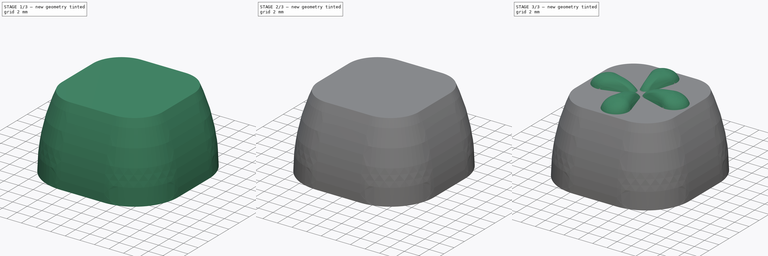
[diagram: build sequence overview — one tinted view per stage of 3, left to right]
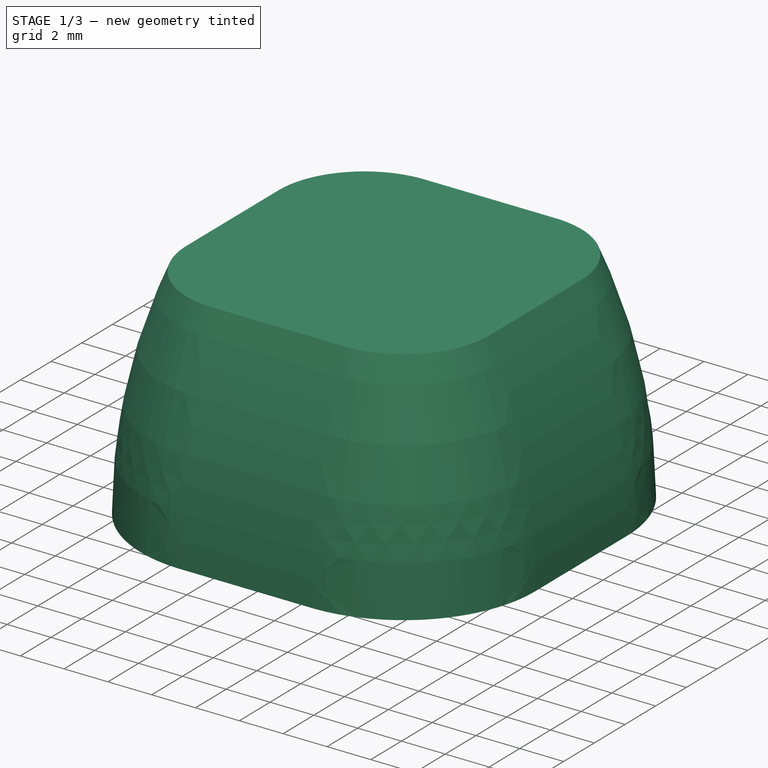
[diagram: stage 1 of 3 — iso view after this stage's code; geometry added in this stage tinted green]
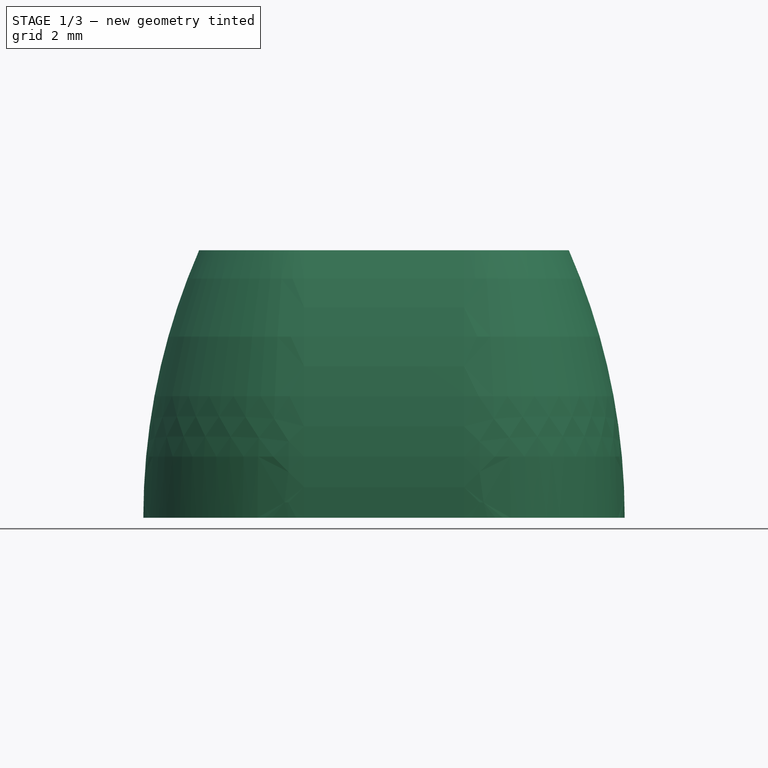
[diagram: stage 1 of 3 — front view after this stage's code; geometry added in this stage tinted green]
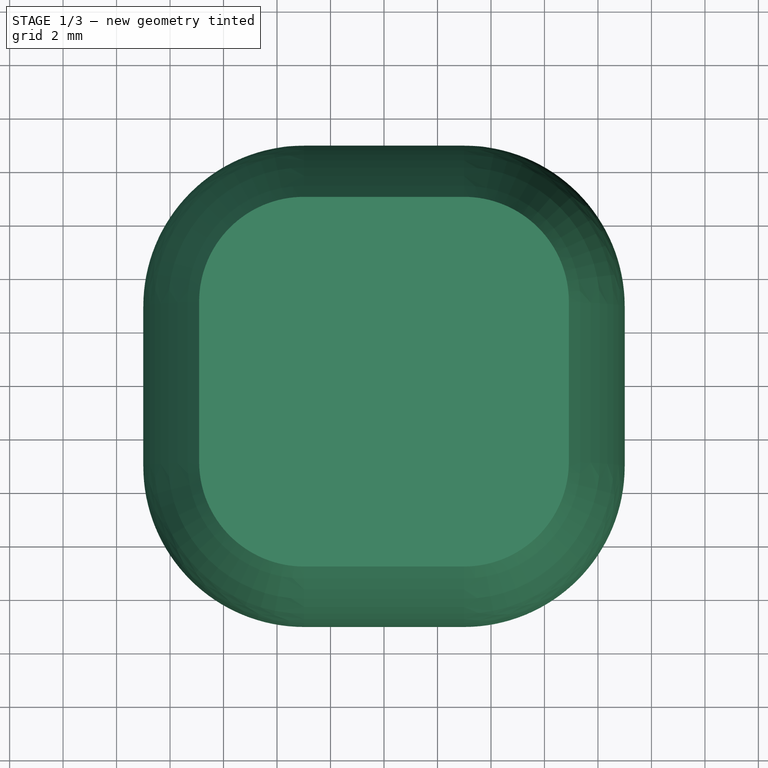
[diagram: stage 1 of 3 — top view after this stage's code; geometry added in this stage tinted green]
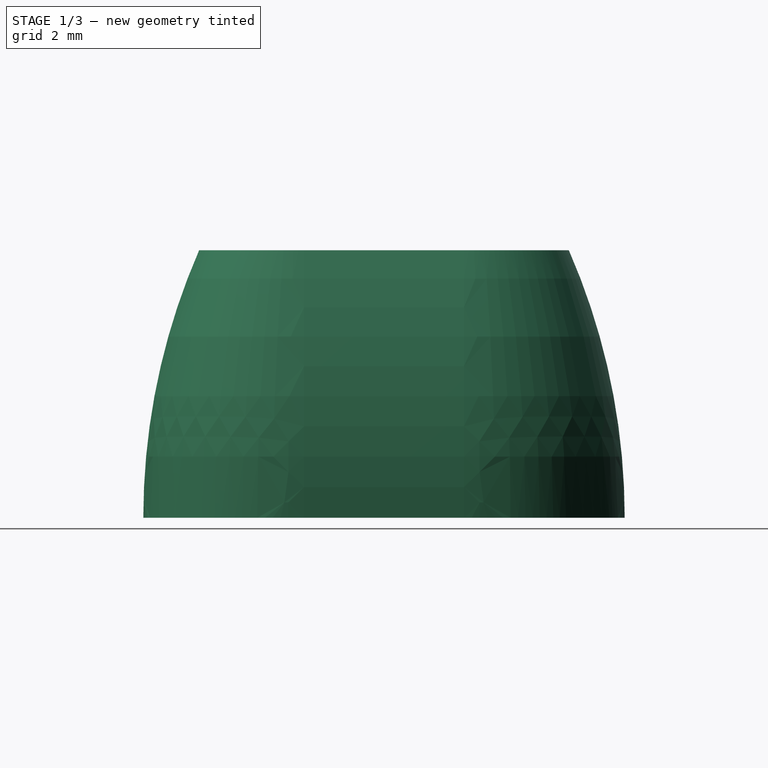
[diagram: stage 1 of 3 — right view after this stage's code; geometry added in this stage tinted green]
FCSTD DOCUMENT  (FreeCAD 1.0R38643 (Git))
Label: custom_keycap
License: All rights reserved
LicenseURL: http://en.wikipedia.org/wiki/All_rights_reserved
objects: Sketcher::SketchObject×8, PartDesign::Pad×3, PartDesign::PolarPattern×2, PartDesign::AdditivePipe×1, PartDesign::AdditiveLoft×1, PartDesign::Body×1
note: 36 computed .brp shape members not serialized (recipe doc carries the construction recipe); baked Part::Feature solids carry a one-line shape summary decoded from their .brp

FEATURE [Sketcher::SketchObject] Sketch
  ArcFitTolerance = 1e-06
  AttachmentSupport = -> [XZ_Plane]
  FullyConstrained = true
  MakeInternals = false
  MapMode = 5
  Placement = pos=(0,0,0) rot=(1,0,0;1.5708rad)
  sketch-geometry (6):
    g0: LineSegment StartX=-7.4 StartY=2.9e-15 StartZ=0 EndX=-9 EndY=3.1e-15 EndZ=0
    g1: ArcOfCircle CenterX=16 CenterY=0 CenterZ=0 NormalX=0 NormalY=0 NormalZ=1 AngleXU=0 Radius=25 StartAngle=2.73008 EndAngle=3.14159
    g2: LineSegment StartX=-6.91288 StartY=10 StartZ=0 EndX=-3.99 EndY=10 EndZ=0
    g3: LineSegment StartX=-3.99 StartY=10 StartZ=0 EndX=-3.99 EndY=8 EndZ=0
    g4: LineSegment StartX=-3.99 StartY=8 StartZ=0 EndX=-5.99 EndY=8 EndZ=0
    g5: ArcOfCircle CenterX=16 CenterY=0 CenterZ=0 NormalX=0 NormalY=0 NormalZ=1 AngleXU=0 Radius=23.4 StartAngle=2.79268 EndAngle=3.14159
  constraints (19):
    c: PointOnObject(g0,g-1)
    c: PointOnObject(g0,g-1)
    c: Coincident(g1,g2)
    c: Horizontal(g2)
    c: Coincident(g2,g3)
    c: Coincident(g3,g4)
    c: Coincident(g5,g0)
    c: Horizontal(g4)
    c: Vertical(g3)
    c: Coincident(g1,g0)
    c: Coincident(g1,g5)
    c: Coincident(g4,g5)
    c: PointOnObject(g1,g-1)
    c: DistanceY(g3,g3) = 2  'top_thickness'
    c: Distance(g0,g0) = 1.6
    c: DistanceX(g4,g4) = 2
    c: DistanceY(g-1,g2) = 10  'height'
    c: DistanceX(g0,g1) = 25
    c: DistanceX(g0,g-1) = 9
FEATURE [Sketcher::SketchObject] Sketch001
  ArcFitTolerance = 1e-06
  AttachmentOffset = pos=(0,0,10) rot=(0,0,1;0rad)
  AttachmentSupport = -> [XY_Plane]
  ExternalGeometry = -> [Sketch]
  FullyConstrained = true
  MakeInternals = false
  MapMode = 5
  Placement = pos=(0,0,10) rot=(0,0,1;0rad)
  expr: .AttachmentOffset.Base.z = Sketch.Constraints.height
  sketch-geometry (10):
    g0: LineSegment StartX=-3.99 StartY=2.99 StartZ=0 EndX=-3.99 EndY=-2.99 EndZ=0
    g1: LineSegment StartX=-2.99 StartY=-3.99 StartZ=0 EndX=2.99 EndY=-3.99 EndZ=0
    g2: LineSegment StartX=3.99 StartY=-2.99 StartZ=0 EndX=3.99 EndY=2.99 EndZ=0
    g3: LineSegment StartX=2.99 StartY=3.99 StartZ=0 EndX=-2.99 EndY=3.99 EndZ=0
    g4: ArcOfCircle CenterX=-2.99 CenterY=2.99 CenterZ=0 NormalX=0 NormalY=0 NormalZ=1 AngleXU=0 Radius=1 StartAngle=1.5708 EndAngle=3.14159
    g5: ArcOfCircle CenterX=-2.99 CenterY=-2.99 CenterZ=0 NormalX=0 NormalY=0 NormalZ=1 AngleXU=0 Radius=1 StartAngle=3.14159 EndAngle=4.71239
    g6: ArcOfCircle CenterX=2.99 CenterY=-2.99 CenterZ=0 NormalX=0 NormalY=0 NormalZ=1 AngleXU=0 Radius=1 StartAngle=4.71239 EndAngle=6.28319
    g7: ArcOfCircle CenterX=2.99 CenterY=2.99 CenterZ=0 NormalX=0 NormalY=0 NormalZ=1 AngleXU=0 Radius=1 StartAngle=0 EndAngle=1.5708
    g8: GeomPoint [constr] X=-3.99 Y=3.99 Z=0
    g9: GeomPoint [constr] X=3.99 Y=-3.99 Z=0
  constraints (23):
    c: Tangent(g0,g4) = -1.5708
    c: Tangent(g0,g5) = -1.5708
    c: Tangent(g1,g5) = -1.5708
    c: Tangent(g1,g6) = -1.5708
    c: Tangent(g2,g6) = -1.5708
    c: Tangent(g2,g7) = -1.5708
    c: Tangent(g3,g7) = -1.5708
    c: Tangent(g3,g4) = -1.5708
    c: Vertical(g0)
    c: Vertical(g2)
    c: Horizontal(g1)
    c: Horizontal(g3)
    c: Equal(g4,g5)
    c: Equal(g5,g6)
    c: Equal(g6,g7)
    c: PointOnObject(g8,g0)
    c: PointOnObject(g8,g3)
    c: PointOnObject(g9,g1)
    c: PointOnObject(g9,g2)
    c: PointOnObject(g-3,g0)
    c: Symmetric(g4,g6,g-1)
    c: Equal(g3,g0)
    c: Radius(g7) = 1
FEATURE [PartDesign::AdditivePipe] AdditivePipe
  AuxilleryCurvelinear = true
  AuxillerySpineTangent = false
  Binormal = (0,0,0)
  Mode = 0
  Placement = pos=(0,0,0) rot=(1,0,0;1.5708rad)
  Profile = -> Sketch
  Spine = -> Sketch001
  SpineTangent = false
  Suppressed = false
  Transformation = 0
  Transition = 0
FEATURE [PartDesign::Pad] Pad
  BaseFeature = -> AdditivePipe
  Direction = (0,0,1)
  Length = 2
  Length2 = 10
  Placement = pos=(0,0,0) rot=(1,0,0;1.5708rad)
  Profile = -> Sketch001
  ReferenceAxis = -> Sketch001 [N_Axis]
  Reversed = true
  Suppressed = false
  Type = 0
  expr: Length = Sketch.Constraints.top_thickness
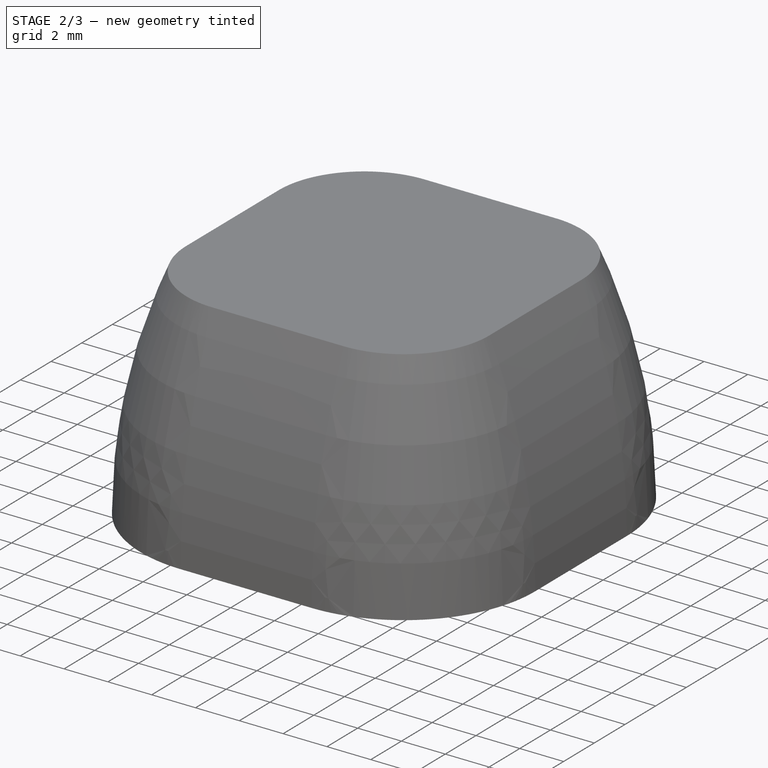
[diagram: stage 2 of 3 — iso view after this stage's code; geometry added in this stage tinted green]
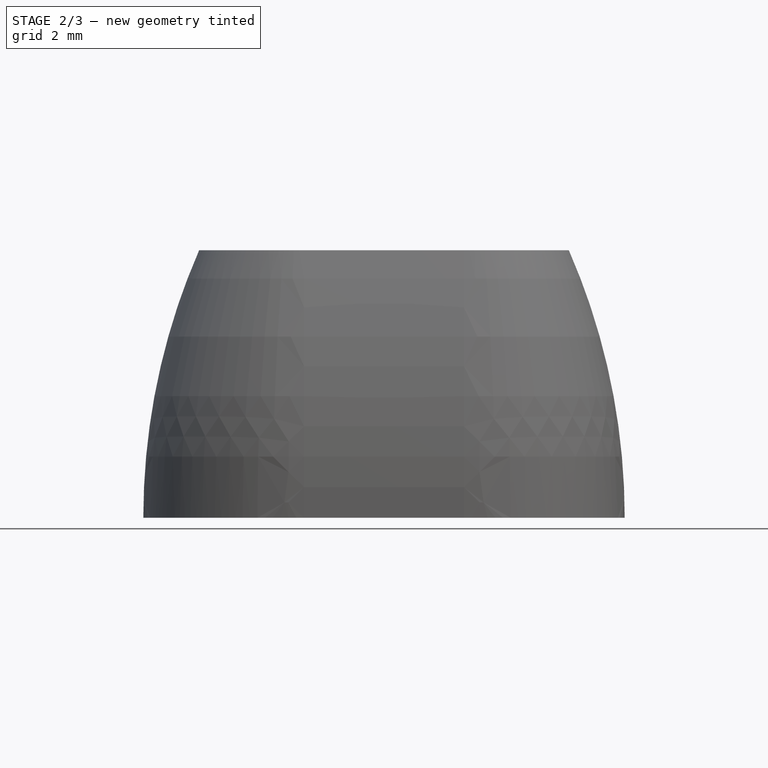
[diagram: stage 2 of 3 — front view after this stage's code; geometry added in this stage tinted green]
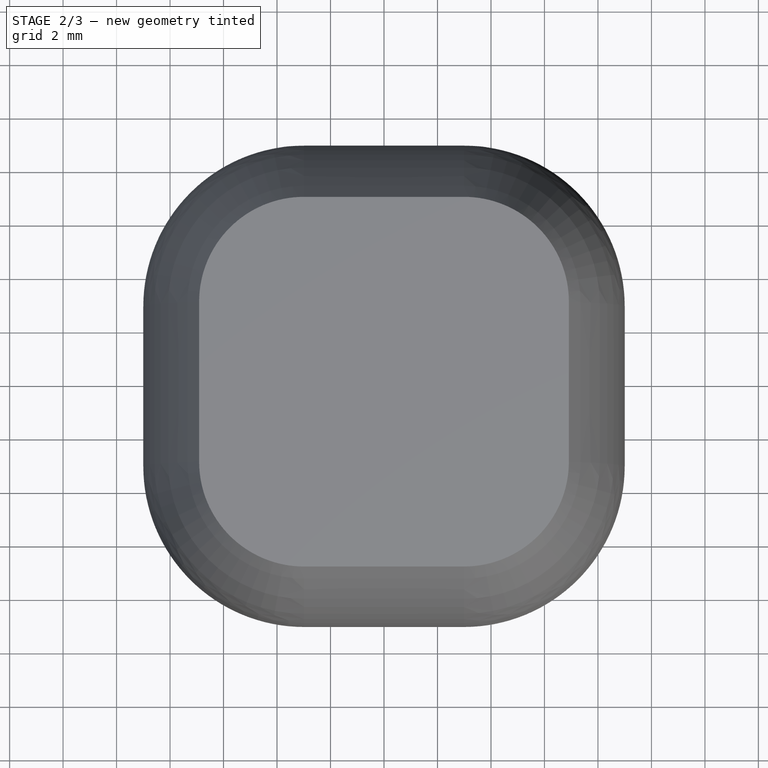
[diagram: stage 2 of 3 — top view after this stage's code; geometry added in this stage tinted green]
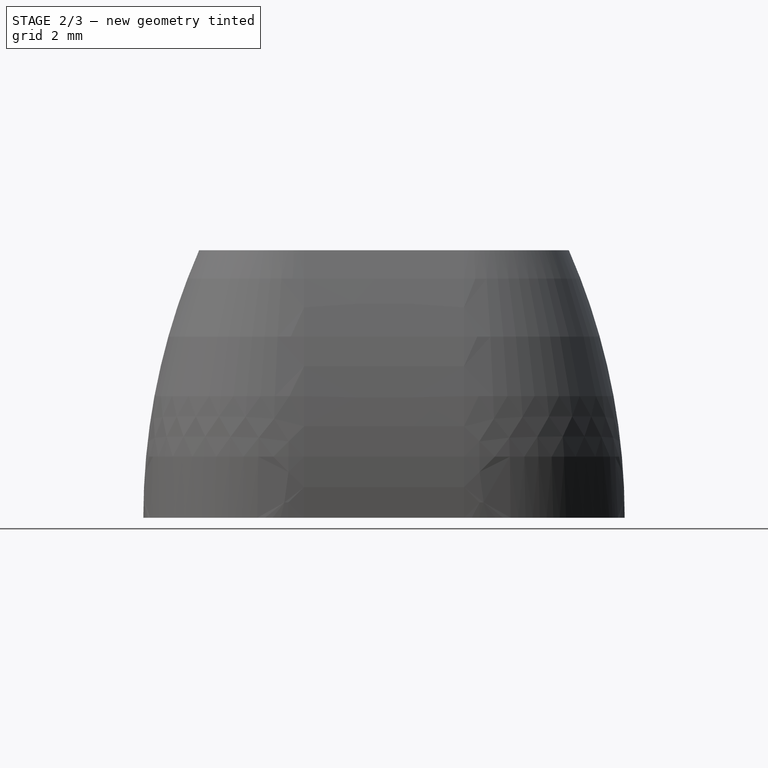
[diagram: stage 2 of 3 — right view after this stage's code; geometry added in this stage tinted green]
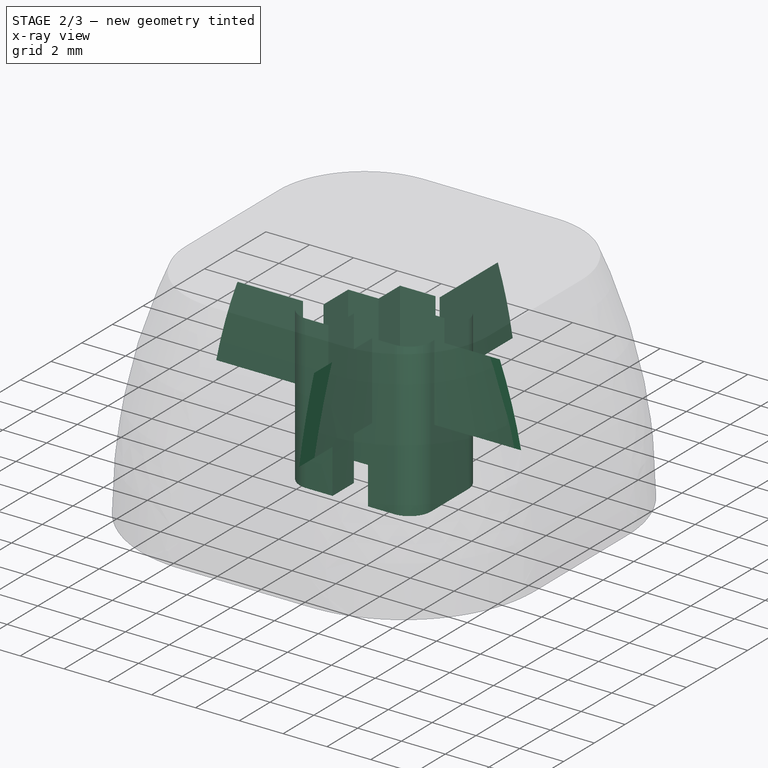
[diagram: stage 2 of 3 — x-ray composite at the iso view; earlier geometry ghosted, this stage's added geometry solid]
FEATURE [Sketcher::SketchObject] Sketch002
  ArcFitTolerance = 1e-06
  AttachmentSupport = -> [Pad]
  FullyConstrained = true
  MakeInternals = false
  MapMode = 5
  Placement = pos=(0,0,8) rot=(1,0,0;3.14159rad)
  expr: Constraints[51] = .Constraints.half_width
  expr: Constraints[53] = .Constraints.half_gap
  sketch-geometry (20):
    g0: LineSegment StartX=-0.81 StartY=2.2 StartZ=0 EndX=-0.81 EndY=0.805 EndZ=0
    g1: LineSegment StartX=-0.81 StartY=0.805 StartZ=0 EndX=-2.2 EndY=0.805 EndZ=0
    g2: LineSegment StartX=-2.2 StartY=0.805 StartZ=0 EndX=-2.2 EndY=-0.805 EndZ=0
    g3: LineSegment StartX=-2.2 StartY=-0.805 StartZ=0 EndX=-0.81 EndY=-0.805 EndZ=0
    g4: LineSegment StartX=-0.81 StartY=-0.805 StartZ=0 EndX=-0.81 EndY=-2.2 EndZ=0
    g5: LineSegment StartX=-0.81 StartY=-2.2 StartZ=0 EndX=-2 EndY=-2.2 EndZ=0
    g6: ArcOfCircle CenterX=-2 CenterY=-1.2 CenterZ=0 NormalX=0 NormalY=0 NormalZ=1 AngleXU=0 Radius=1 StartAngle=3.14159 EndAngle=4.71239
    g7: LineSegment StartX=-3 StartY=-1.2 StartZ=0 EndX=-3 EndY=1.2 EndZ=0
    g8: ArcOfCircle CenterX=-2 CenterY=1.2 CenterZ=0 NormalX=0 NormalY=0 NormalZ=1 AngleXU=0 Radius=1 StartAngle=1.5708 EndAngle=3.14159
    g9: LineSegment StartX=-2 StartY=2.2 StartZ=0 EndX=-0.81 EndY=2.2 EndZ=0
    g10: LineSegment StartX=0.81 StartY=2.2 StartZ=0 EndX=0.81 EndY=0.805 EndZ=0
    g11: LineSegment StartX=0.81 StartY=0.805 StartZ=0 EndX=2.2 EndY=0.805 EndZ=0
    g12: LineSegment StartX=2.2 StartY=0.805 StartZ=0 EndX=2.2 EndY=-0.805 EndZ=0
    g13: LineSegment StartX=2.2 StartY=-0.805 StartZ=0 EndX=0.81 EndY=-0.805 EndZ=0
    g14: LineSegment StartX=0.81 StartY=-0.805 StartZ=0 EndX=0.81 EndY=-2.2 EndZ=0
    g15: LineSegment StartX=0.81 StartY=-2.2 StartZ=0 EndX=2 EndY=-2.2 EndZ=0
    g16: ArcOfCircle CenterX=2 CenterY=-1.2 CenterZ=0 NormalX=0 NormalY=0 NormalZ=1 AngleXU=0 Radius=1 StartAngle=4.71239 EndAngle=6.28319
    g17: LineSegment StartX=3 StartY=-1.2 StartZ=0 EndX=3 EndY=1.2 EndZ=0
    g18: ArcOfCircle CenterX=2 CenterY=1.2 CenterZ=0 NormalX=0 NormalY=0 NormalZ=1 AngleXU=0 Radius=1 StartAngle=0 EndAngle=1.5708
    g19: LineSegment StartX=2 StartY=2.2 StartZ=0 EndX=0.81 EndY=2.2 EndZ=0
  constraints (54):
    c: Vertical(g0)
    c: Coincident(g0,g1)
    c: Coincident(g1,g2)
    c: Coincident(g2,g3)
    c: Horizontal(g3)
    c: Coincident(g3,g4)
    c: Coincident(g4,g5)
    c: Horizontal(g5)
    c: Tangent(g5,g6) = 1.5708
    c: Tangent(g6,g7) = 1.5708
    c: Tangent(g7,g8) = 1.5708
    c: Tangent(g8,g9) = 1.5708
    c: Coincident(g9,g0)
    c: Horizontal(g9)
    c: Horizontal(g1)
    c: Vertical(g2)
    c: Vertical(g4)
    c: Equal(g8,g6)
    c: Vertical(g7)
    c: Distance(g7,g-2) = 3  'half_width'
    c: DistanceY(g2,g2) = 1.61
    c: Symmetric(g0,g3,g-1)
    c: DistanceY(g4,g0) = 4.4
    c: Radius(g8) = 1
    c: Distance(g0,g-2) = 0.81  'half_gap'
    c: Distance(g-2,g2) = 2.2
    c: Equal(g0,g4)
    c: Vertical(g10)
    c: Coincident(g10,g11)
    c: Coincident(g11,g12)
    c: Coincident(g12,g13)
    c: Horizontal(g13)
    c: Coincident(g13,g14)
    c: Coincident(g14,g15)
    c: Horizontal(g15)
    c: Tangent(g15,g16) = -1.5708
    c: Tangent(g16,g17) = -1.5708
    c: Tangent(g17,g18) = -1.5708
    c: Tangent(g18,g19) = -1.5708
    c: Coincident(g19,g10)
    c: Horizontal(g19)
    c: Horizontal(g11)
    c: Vertical(g12)
    c: Vertical(g14)
    c: Equal(g18,g16)
    c: Vertical(g17)
    c: Radius(g18) = 1
    c: Equal(g10,g14)
    c: Symmetric(g10,g13,g-1)
    c: Equal(g2,g12)
    c: Equal(g1,g11)
    c: DistanceX(g-1,g17) = 3
    c: Equal(g0,g10)
    c: Distance(g-1,g10) = 0.81
FEATURE [PartDesign::Pad] Pad001
  BaseFeature = -> Pad
  Direction = (0,0,-1)
  Length = 7
  Length2 = 10
  Placement = pos=(0,0,0) rot=(1,0,0;1.5708rad)
  Profile = -> Sketch002
  ReferenceAxis = -> Sketch002 [N_Axis]
  Suppressed = false
  Type = 0
  expr: Length = Sketch.Constraints.height - Sketch.Constraints.top_thickness - 1 mm
FEATURE [Sketcher::SketchObject] Sketch003
  ArcFitTolerance = 1e-06
  AttachmentSupport = -> [XZ_Plane]
  ExternalGeometry = -> [Pad001]
  FullyConstrained = true
  MakeInternals = false
  MapMode = 5
  Placement = pos=(0,0,0) rot=(1,0,0;1.5708rad)
  sketch-geometry (4):
    g0: LineSegment StartX=-7.68544 StartY=8 StartZ=0 EndX=-8.59167 EndY=4.5 EndZ=0
    g1: LineSegment StartX=-8.59167 StartY=4.5 StartZ=0 EndX=-2.2 EndY=4.5 EndZ=0
    g2: LineSegment StartX=-2.2 StartY=4.5 StartZ=0 EndX=-2.2 EndY=8 EndZ=0
    g3: LineSegment StartX=-2.2 StartY=8 StartZ=0 EndX=-7.68544 EndY=8 EndZ=0
  constraints (11):
    c: Coincident(g0,g1)
    c: Coincident(g1,g2)
    c: Coincident(g2,g3)
    c: Coincident(g3,g0)
    c: Vertical(g2)
    c: Horizontal(g1)
    c: Horizontal(g3)
    c: PointOnObject(g0,g-4)
    c: PointOnObject(g0,g-4)
    c: DistanceY(g2,g2) = 3.5
    c: Coincident(g2,g-7)
FEATURE [PartDesign::Pad] Pad002
  BaseFeature = -> Pad001
  Direction = (0,-1,2e-16)
  Length = 2
  Length2 = 10
  Midplane = true
  Placement = pos=(0,0,0) rot=(1,0,0;1.5708rad)
  Profile = -> Sketch003
  ReferenceAxis = -> Sketch003 [N_Axis]
  Suppressed = false
  Type = 0
FEATURE [PartDesign::PolarPattern] PolarPattern
  Angle = 360
  Axis = -> Z_Axis
  BaseFeature = -> Pad002
  Mode = 0
  Occurrences = 4
  Offset = 120
  Originals = -> [Pad002]
  Placement = pos=(0,0,0) rot=(1,0,0;1.5708rad)
  Suppressed = false
  TransformMode = 0
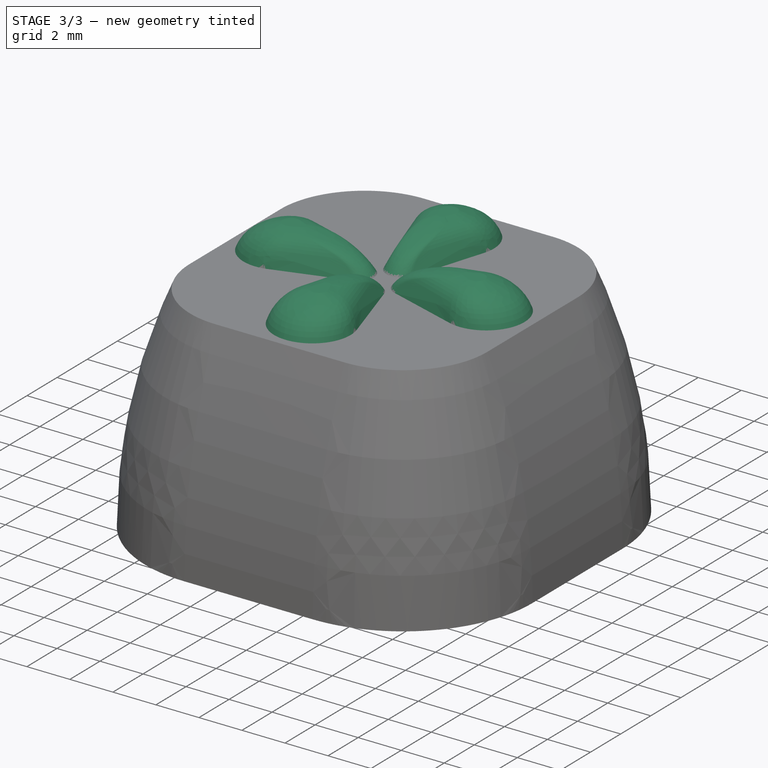
[diagram: stage 3 of 3 — iso view after this stage's code; geometry added in this stage tinted green]
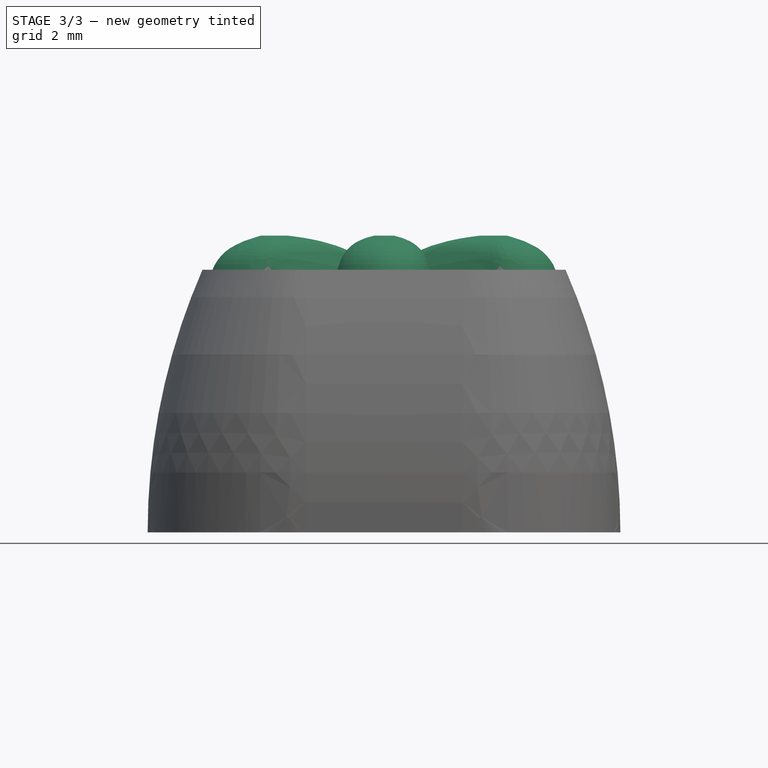
[diagram: stage 3 of 3 — front view after this stage's code; geometry added in this stage tinted green]
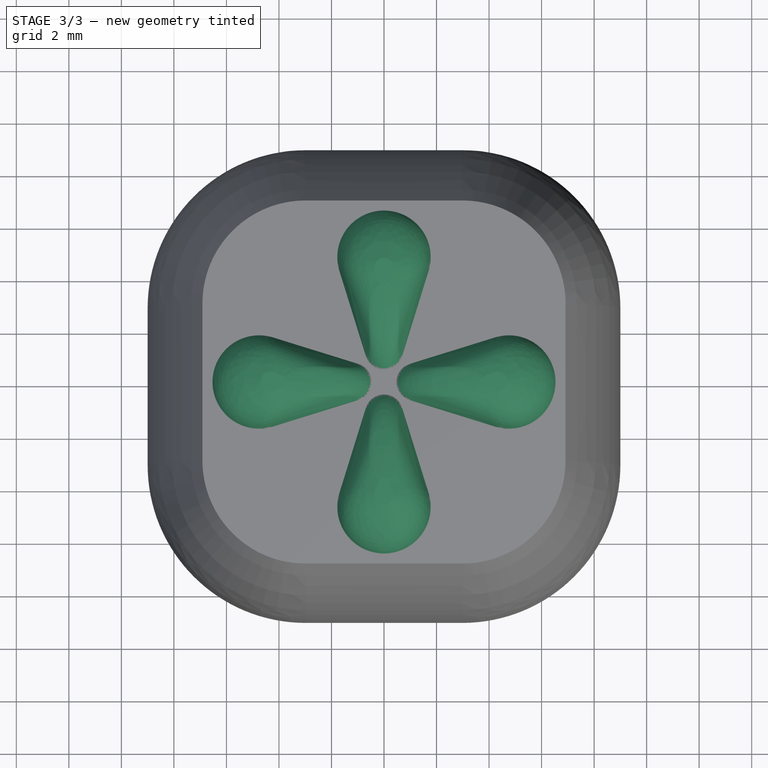
[diagram: stage 3 of 3 — top view after this stage's code; geometry added in this stage tinted green]
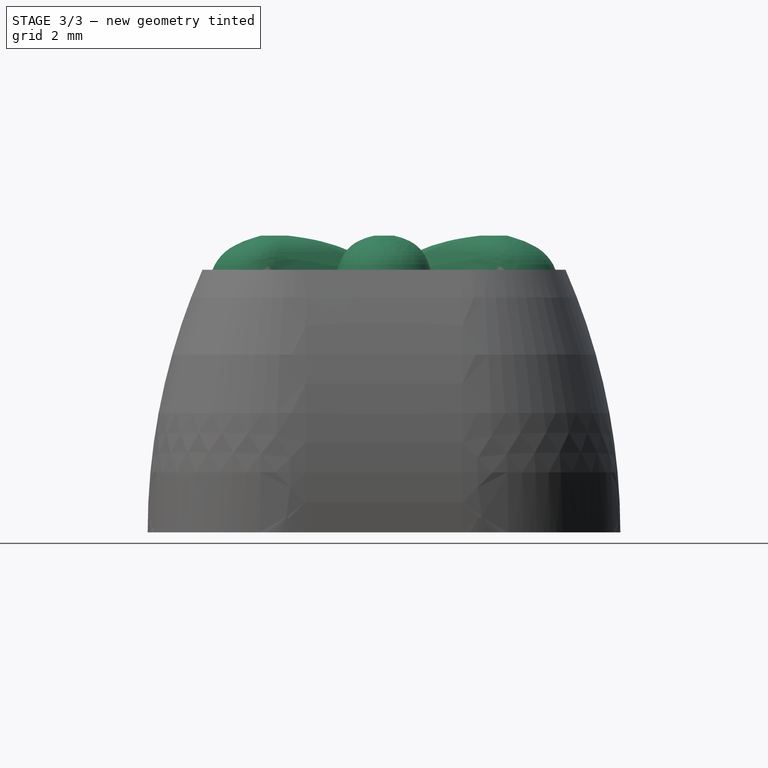
[diagram: stage 3 of 3 — right view after this stage's code; geometry added in this stage tinted green]
FEATURE [Sketcher::SketchObject] Sketch004
  ArcFitTolerance = 1e-06
  AttachmentSupport = -> [PolarPattern]
  FullyConstrained = false
  MakeInternals = false
  MapMode = 5
  Placement = pos=(0,0,10) rot=(0,0,1;3.14159rad)
  sketch-geometry (4):
    g0: ArcOfCircle CenterX=-4.75292 CenterY=0 CenterZ=0 NormalX=0 NormalY=0 NormalZ=1 AngleXU=0 Radius=1.77776 StartAngle=1.2693 EndAngle=5.01389
    g1: ArcOfCircle CenterX=-1.19797 CenterY=0 CenterZ=0 NormalX=0 NormalY=0 NormalZ=1 AngleXU=0 Radius=0.722106 StartAngle=5.01389 EndAngle=7.55248
    g2: LineSegment StartX=-4.22501 StartY=1.69757 StartZ=0 EndX=-0.983538 EndY=0.689533 EndZ=0
    g3: LineSegment StartX=-4.225 StartY=-1.69757 StartZ=0 EndX=-0.983538 EndY=-0.689533 EndZ=0
  constraints (6):
    c: PointOnObject(g0,g-1)
    c: PointOnObject(g1,g-1)
    c: Tangent(g0,g3) = -1.5708
    c: Tangent(g0,g2) = 1.5708
    c: Tangent(g1,g2) = 1.5708
    c: Tangent(g1,g3) = -1.5708
FEATURE [Sketcher::SketchObject] Sketch005
  ArcFitTolerance = 1e-06
  AttachmentOffset = pos=(0,0,0.5) rot=(0,0,1;0rad)
  AttachmentSupport = -> [PolarPattern]
  FullyConstrained = false
  MakeInternals = false
  MapMode = 5
  Placement = pos=(0,0,10.5) rot=(0,0,1;3.14159rad)
  sketch-geometry (4):
    g0: ArcOfCircle CenterX=-4.64864 CenterY=0 CenterZ=0 NormalX=0 NormalY=0 NormalZ=1 AngleXU=0 Radius=1.58233 StartAngle=1.2445 EndAngle=5.03868
    g1: ArcOfCircle CenterX=-1.57094 CenterY=0 CenterZ=0 NormalX=0 NormalY=0 NormalZ=1 AngleXU=0 Radius=0.595823 StartAngle=5.03868 EndAngle=7.52769
    g2: LineSegment StartX=-4.14145 StartY=1.49884 StartZ=0 EndX=-1.37996 EndY=0.564386 EndZ=0
    g3: LineSegment StartX=-4.14145 StartY=-1.49884 StartZ=0 EndX=-1.37996 EndY=-0.564386 EndZ=0
  constraints (6):
    c: PointOnObject(g0,g-1)
    c: PointOnObject(g1,g-1)
    c: Tangent(g0,g3) = -1.5708
    c: Tangent(g0,g2) = 1.5708
    c: Tangent(g1,g2) = 1.5708
    c: Tangent(g1,g3) = -1.5708
FEATURE [Sketcher::SketchObject] Sketch006
  ArcFitTolerance = 1e-06
  AttachmentOffset = pos=(0,0,1) rot=(0,0,1;0rad)
  AttachmentSupport = -> [PolarPattern]
  FullyConstrained = false
  MakeInternals = false
  MapMode = 5
  Placement = pos=(0,0,11) rot=(0,0,1;3.14159rad)
  sketch-geometry (4):
    g0: ArcOfCircle CenterX=-4.42146 CenterY=0 CenterZ=0 NormalX=0 NormalY=0 NormalZ=1 AngleXU=0 Radius=1.13256 StartAngle=1.26925 EndAngle=5.01394
    g1: ArcOfCircle CenterX=-2.69368 CenterY=0 CenterZ=0 NormalX=0 NormalY=0 NormalZ=1 AngleXU=0 Radius=0.619414 StartAngle=5.01394 EndAngle=7.55243
    g2: LineSegment StartX=-4.08509 StartY=1.08146 StartZ=0 EndX=-2.50972 EndY=0.591465 EndZ=0
    g3: LineSegment StartX=-4.08509 StartY=-1.08146 StartZ=0 EndX=-2.50972 EndY=-0.591465 EndZ=0
  constraints (6):
    c: PointOnObject(g0,g-1)
    c: PointOnObject(g1,g-1)
    c: Tangent(g0,g3) = -1.5708
    c: Tangent(g0,g2) = 1.5708
    c: Tangent(g1,g2) = 1.5708
    c: Tangent(g1,g3) = -1.5708
FEATURE [Sketcher::SketchObject] Sketch007
  ArcFitTolerance = 1e-06
  AttachmentOffset = pos=(0,0,1.3) rot=(0,0,1;0rad)
  AttachmentSupport = -> [PolarPattern]
  FullyConstrained = false
  MakeInternals = false
  MapMode = 5
  Placement = pos=(0,0,11.3) rot=(0,0,1;3.14159rad)
  sketch-geometry (4):
    g0: ArcOfCircle CenterX=-4.32082 CenterY=0 CenterZ=0 NormalX=0 NormalY=0 NormalZ=1 AngleXU=0 Radius=0.374064 StartAngle=1.16648 EndAngle=5.1167
    g1: ArcOfCircle CenterX=-3.84746 CenterY=0 CenterZ=0 NormalX=0 NormalY=0 NormalZ=1 AngleXU=0 Radius=0.187847 StartAngle=5.1167 EndAngle=7.44967
    g2: LineSegment StartX=-4.17367 StartY=0.343905 StartZ=0 EndX=-3.77356 EndY=0.172702 EndZ=0
    g3: LineSegment StartX=-4.17367 StartY=-0.343905 StartZ=0 EndX=-3.77356 EndY=-0.172702 EndZ=0
  constraints (6):
    c: PointOnObject(g0,g-1)
    c: PointOnObject(g1,g-1)
    c: Tangent(g0,g3) = -1.5708
    c: Tangent(g0,g2) = 1.5708
    c: Tangent(g1,g2) = 1.5708
    c: Tangent(g1,g3) = -1.5708
FEATURE [PartDesign::AdditiveLoft] AdditiveLoft
  BaseFeature = -> PolarPattern
  Closed = false
  Placement = pos=(0,0,0) rot=(1,0,0;1.5708rad)
  Profile = -> Sketch004
  Ruled = false
  Sections = -> [Sketch005,Sketch006,Sketch007]
  Suppressed = false
FEATURE [PartDesign::PolarPattern] PolarPattern001
  Angle = 360
  Axis = -> Z_Axis
  BaseFeature = -> AdditiveLoft
  Mode = 0
  Occurrences = 4
  Offset = 120
  Originals = -> [AdditiveLoft]
  Placement = pos=(0,0,0) rot=(1,0,0;1.5708rad)
  Suppressed = false
  TransformMode = 0
FEATURE [PartDesign::Body] Body
  AllowCompound = false
  Group = -> [Sketch,Sketch001,AdditivePipe,Pad,Sketch002,Pad001,Sketch003,Pad002,PolarPattern,Sketch004,Sketch005,Sketch006,Sketch007,AdditiveLoft,PolarPattern001]
  Origin = -> Origin
  Tip = -> PolarPattern001
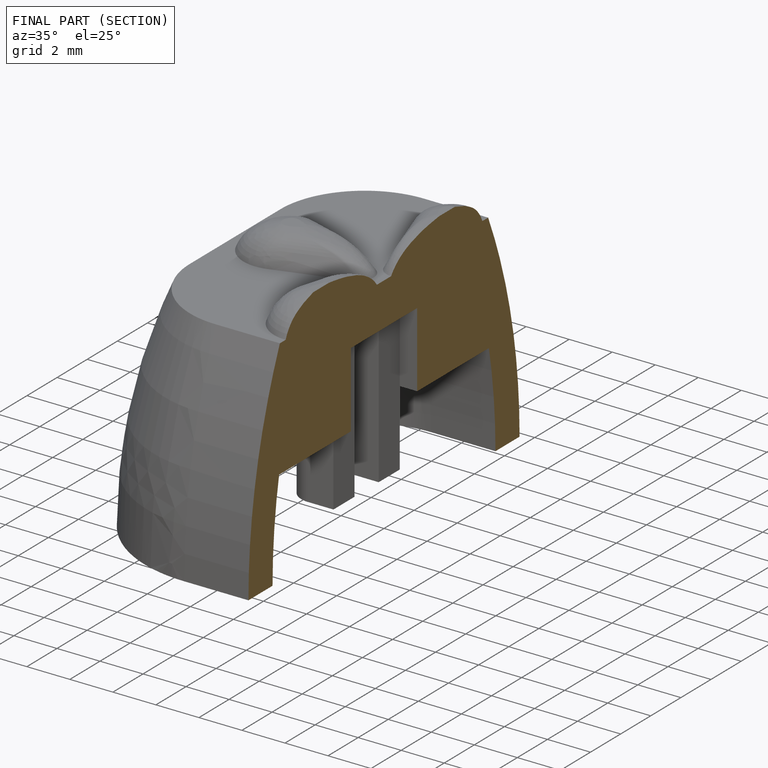
[diagram: finished part — half-section view (interior)]
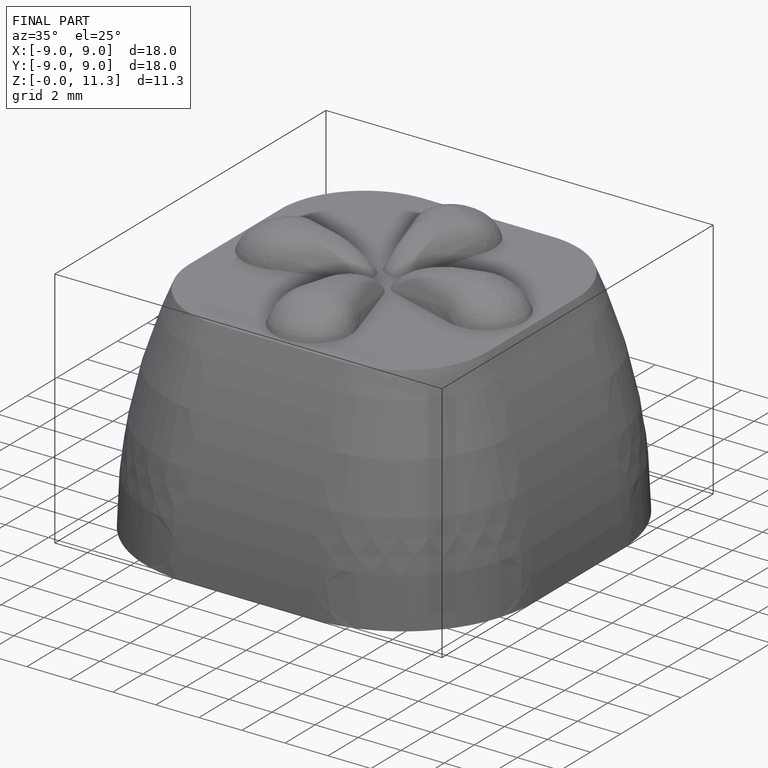
[diagram: finished part — iso view with bounding-box wireframe]
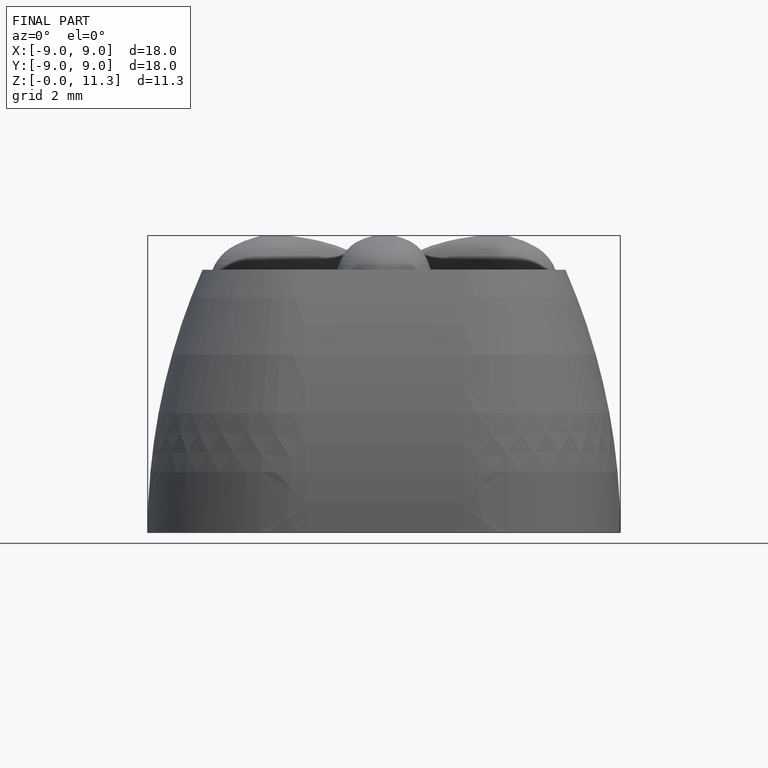
[diagram: finished part — front view with bounding-box wireframe]
